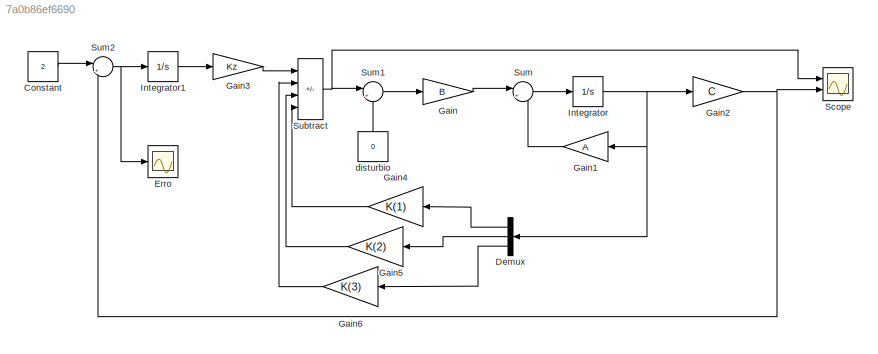
MODEL slx_7a0b86ef6690
KIND model
CONFIG AbsTol = auto
CONFIG EnableMultiTasking = off
CONFIG FixedStep = auto
CONFIG MaxStep = auto
CONFIG MinStep = auto
CONFIG RelTol = 1e-3
CONFIG SampleTimeConstraint = Unconstrained
CONFIG Solver = VariableStepAuto
CONFIG SolverName = VariableStepAuto
CONFIG StartTime = 0.0
CONFIG StopTime = 100
BLOCK [Constant] Constant
  Value = 2
BLOCK [Demux] Demux
  NameLocation = top
  Outputs = 3
  Ports = [1, 3]
BLOCK [Scope] Erro
  Floating = off
  NumInputPorts = 1
  Ports = [1]
  ScopeSpecificationString = Simulink.scopes.TimeScopeBlockCfg('CurrentConfiguration', extmgr.ConfigurationSet(extmgr.Configuration('Core','General UI',true),extmgr.Configuration('Core','Source UI',true),extmgr.Configuration('Sources','WiredSimulink',true,'DataLoggingVariableName','ScopeData1'),extmgr.Configuration('Visuals','Time Domain',true,'SerializedDisplays',{struct('MinYLimReal','-6.07475','MaxYLimReal','3.09745','YLab...<+1394ch>
BLOCK [Gain] Gain
  Gain = B
  Multiplication = Matrix(K*u)
BLOCK [Gain] Gain1
  Gain = A
  Multiplication = Matrix(K*u)
  NameLocation = top
BLOCK [Gain] Gain2
  Gain = C
  Multiplication = Matrix(K*u)
BLOCK [Gain] Gain3
  Gain = Kz
  Multiplication = Matrix(K*u)
BLOCK [Gain] Gain4
  Gain = K(1)
  Multiplication = Matrix(K*u)
BLOCK [Gain] Gain5
  Gain = K(2)
  Multiplication = Matrix(K*u)
BLOCK [Gain] Gain6
  Gain = K(3)
  Multiplication = Matrix(K*u)
BLOCK [Integrator] Integrator
  Ports = [1, 1]
BLOCK [Integrator] Integrator1
  Ports = [1, 1]
BLOCK [Scope] Scope
  Floating = off
  NumInputPorts = 2
  Ports = [2]
  ScopeSpecificationString = Simulink.scopes.TimeScopeBlockCfg('CurrentConfiguration', extmgr.ConfigurationSet(extmgr.Configuration('Core','General UI',true),extmgr.Configuration('Core','Source UI',true),extmgr.Configuration('Sources','WiredSimulink',true),extmgr.Configuration('Visuals','Time Domain',true,'SerializedDisplays',{struct('MinYLimReal','-20.4216','MaxYLimReal','34.5825','YLabelReal','','MinYLimMag','0.00000','MaxY...<+1462ch>
BLOCK [Sum] Subtract
  IconShape = rectangular
  Inputs = ----
  Ports = [4, 1]
BLOCK [Sum] Sum
  Inputs = |++
  Ports = [2, 1]
BLOCK [Sum] Sum1
  Inputs = |++
  Ports = [2, 1]
BLOCK [Sum] Sum2
  Inputs = |+-
  Ports = [2, 1]
BLOCK [Constant] disturbio
  NameLocation = right
  Value = 0
LINE Constant:1 -> Sum2:1
LINE Demux:1 -> Gain4:1
LINE Demux:2 -> Gain5:1
LINE Demux:3 -> Gain6:1
LINE Gain1:1 -> Sum:2
NET Gain2:1 -> Scope:2, Sum2:2
LINE Gain3:1 -> Subtract:1
LINE Gain4:1 -> Subtract:4
LINE Gain5:1 -> Subtract:3
LINE Gain6:1 -> Subtract:2
LINE Gain:1 -> Sum:1
LINE Integrator1:1 -> Gain3:1
NET Integrator:1 -> Demux:1, Gain1:1, Gain2:1
NET Subtract:1 -> Scope:1, Sum1:1
LINE Sum1:1 -> Gain:1
NET Sum2:1 -> Erro:1, Integrator1:1
LINE Sum:1 -> Integrator:1
LINE disturbio:1 -> Sum1:2
note: NET lines group one-source signal fan-out (src -> all destinations, sorted); 1:1 wires keep LINE
